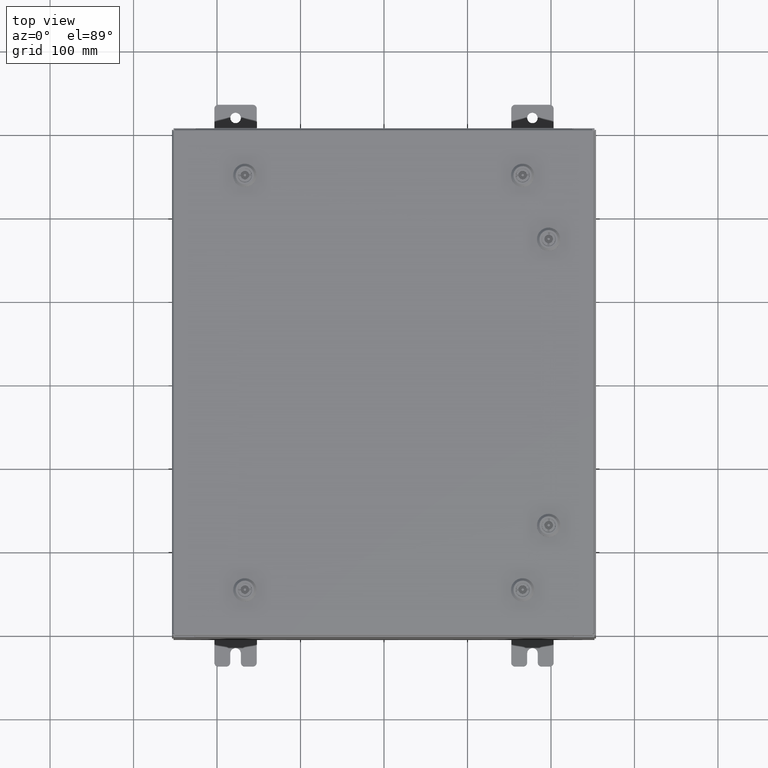
[diagram: clean part render]
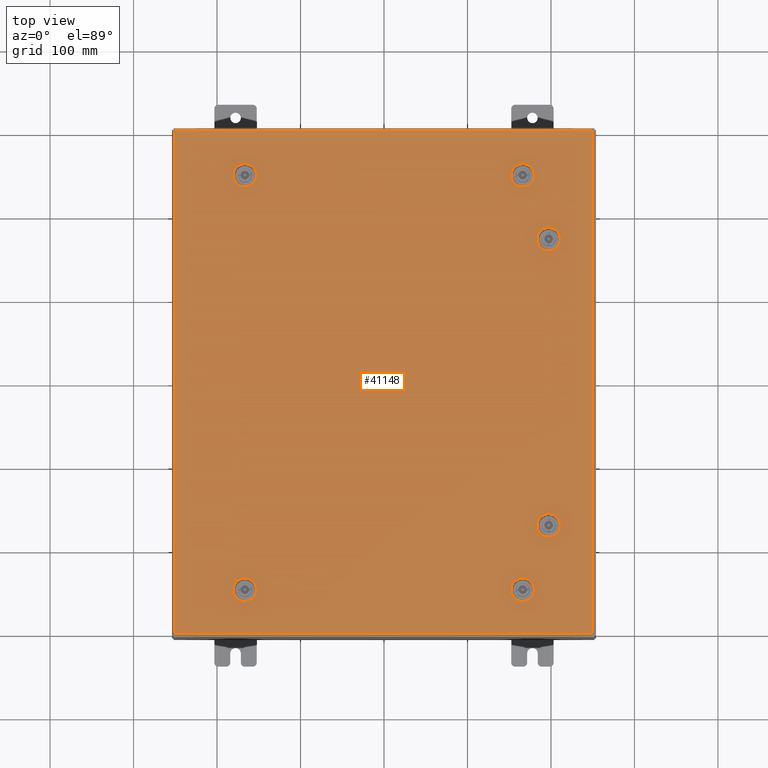
[diagram: same view with one face highlighted and labeled with its STEP entity id]
A machine part, top view. The second image highlights one B-rep face of the part: STEP entity #41148.
In plain terms, the highlighted planar face has unit normal (0, 0, -1).
Its self-contained STEP definition (entity closure, byte-faithful):
#111 = CARTESIAN_POINT ( 'NONE',  ( 6.562499999999985800, 9.787799999999993600, -2.637953810749545800E-014 ) ) ;
#233 = ORIENTED_EDGE ( 'NONE', *, *, #58331, .F. ) ;
#305 = VERTEX_POINT ( 'NONE', #31156 ) ;
#341 = FACE_BOUND ( 'NONE', #40443, .T. ) ;
#412 = CIRCLE ( 'NONE', #37755, 0.4424999999999972800 ) ;
#510 = CARTESIAN_POINT ( 'NONE',  ( 9.849799999999996600, 11.84980000000000000, 8.878505979408856000E-016 ) ) ;
#556 = CARTESIAN_POINT ( 'NONE',  ( -6.363047624732101500, -9.392799999999997600, -4.688151652918229300E-014 ) ) ;
#658 = DIRECTION ( 'NONE',  ( -0.0000000000000000000, -6.982962677686266700E-015, 1.000000000000000000 ) ) ;
#1060 = EDGE_CURVE ( 'NONE', #4224, #2759, #48352, .T. ) ;
#1168 = DIRECTION ( 'NONE',  ( 0.0000000000000000000, 0.0000000000000000000, 1.000000000000000000 ) ) ;
#1275 = DIRECTION ( 'NONE',  ( -1.000000000000000000, 0.0000000000000000000, -0.0000000000000000000 ) ) ;
#1327 = VECTOR ( 'NONE', #10026, 39.37007874015748100 ) ;
#1776 = CARTESIAN_POINT ( 'NONE',  ( 6.761952375267869200, -9.392799999999995800, 0.0000000000000000000 ) ) ;
#2103 = DIRECTION ( 'NONE',  ( 1.000000000000000000, 0.0000000000000000000, 0.0000000000000000000 ) ) ;
#2420 = EDGE_CURVE ( 'NONE', #27146, #17389, #59016, .T. ) ;
#2589 = DIRECTION ( 'NONE',  ( -1.000000000000000000, -1.095739467627835000E-014, 6.982962677686269100E-015 ) ) ;
#2591 = CARTESIAN_POINT ( 'NONE',  ( 8.182800000000003800, -6.550547624732132600, -4.574222958191090100E-014 ) ) ;
#2704 = DIRECTION ( 'NONE',  ( 1.095739467627835000E-014, -1.000000000000000000, -6.982962677686269100E-015 ) ) ;
#2759 = VERTEX_POINT ( 'NONE', #3247 ) ;
#3141 = CARTESIAN_POINT ( 'NONE',  ( 6.363047624732101500, 9.392799999999997600, -2.498676961502394800E-014 ) ) ;
#3247 = CARTESIAN_POINT ( 'NONE',  ( 9.849799999999996600, 11.84980000000000000, 8.878505979408856000E-016 ) ) ;
#3431 = CARTESIAN_POINT ( 'NONE',  ( 7.392800000000014500, -6.949452375267905600, -4.852776656685395200E-014 ) ) ;
#4224 = VERTEX_POINT ( 'NONE', #15415 ) ;
#4475 = ORIENTED_EDGE ( 'NONE', *, *, #51901, .F. ) ;
#4501 = CIRCLE ( 'NONE', #19734, 0.4424999999999983400 ) ;
#4988 = LINE ( 'NONE', #27786, #27956 ) ;
#5026 = DIRECTION ( 'NONE',  ( -1.000000000000000000, 0.0000000000000000000, 6.982962677686260400E-015 ) ) ;
#5047 = VECTOR ( 'NONE', #42336, 39.37007874015748100 ) ;
#5380 = CARTESIAN_POINT ( 'NONE',  ( 8.182800000000000300, 6.949452375267901200, 0.0000000000000000000 ) ) ;
#5567 = CIRCLE ( 'NONE', #14807, 0.4424999999999983400 ) ;
#6147 = DIRECTION ( 'NONE',  ( 6.982962677686266700E-015, -0.0000000000000000000, 1.000000000000000000 ) ) ;
#6258 = VERTEX_POINT ( 'NONE', #10687 ) ;
#6301 = EDGE_CURVE ( 'NONE', #63103, #35065, #36845, .T. ) ;
#6646 = LINE ( 'NONE', #40414, #19624 ) ;
#6902 = CIRCLE ( 'NONE', #40066, 0.4424999999999972800 ) ;
#7379 = ORIENTED_EDGE ( 'NONE', *, *, #29948, .F. ) ;
#7461 = AXIS2_PLACEMENT_3D ( 'NONE', #22369, #56688, #27308 ) ;
#8099 = CARTESIAN_POINT ( 'NONE',  ( -9.849800000000001900, -11.84980000000000000, -2.048885995248197400E-016 ) ) ;
#8692 = CARTESIAN_POINT ( 'NONE',  ( -6.363047624732095300, -10.18279999999998400, -5.239805704455435800E-014 ) ) ;
#8977 = CARTESIAN_POINT ( 'NONE',  ( -6.761952375267868300, -10.18279999999999100, 0.0000000000000000000 ) ) ;
#9099 = EDGE_CURVE ( 'NONE', #35541, #52192, #26746, .T. ) ;
#9555 = CARTESIAN_POINT ( 'NONE',  ( -6.761952375267871900, 9.392799999999995800, 0.0000000000000000000 ) ) ;
#9675 = ORIENTED_EDGE ( 'NONE', *, *, #24078, .F. ) ;
#9805 = AXIS2_PLACEMENT_3D ( 'NONE', #46599, #17234, #51551 ) ;
#10026 = DIRECTION ( 'NONE',  ( 1.000000000000000000, -2.739348669069625000E-015, -6.982962677686286400E-015 ) ) ;
#10184 = ORIENTED_EDGE ( 'NONE', *, *, #59902, .F. ) ;
#10687 = CARTESIAN_POINT ( 'NONE',  ( 7.392800000000010000, -6.550547624732132600, 0.0000000000000000000 ) ) ;
#10893 = PLANE ( 'NONE',  #25452 ) ;
#11063 = DIRECTION ( 'NONE',  ( -1.000000000000000000, 1.643609201441752500E-014, 0.0000000000000000000 ) ) ;
#11423 = CARTESIAN_POINT ( 'NONE',  ( 6.363047624732094400, -10.18279999999998400, -2.741128742953046100E-014 ) ) ;
#11791 = FACE_OUTER_BOUND ( 'NONE', #17791, .T. ) ;
#12160 = LINE ( 'NONE', #58435, #35122 ) ;
#12331 = CARTESIAN_POINT ( 'NONE',  ( 7.004999999999983000, 9.787799999999993600, -2.946949909237161200E-014 ) ) ;
#12690 = VERTEX_POINT ( 'NONE', #35314 ) ;
#13222 = DIRECTION ( 'NONE',  ( 0.0000000000000000000, -1.000000000000000000, 0.0000000000000000000 ) ) ;
#13339 = FACE_BOUND ( 'NONE', #34312, .T. ) ;
#13588 = CIRCLE ( 'NONE', #36173, 0.4424999999999972800 ) ;
#13619 = ORIENTED_EDGE ( 'NONE', *, *, #39049, .T. ) ;
#14032 = ORIENTED_EDGE ( 'NONE', *, *, #17260, .F. ) ;
#14113 = CARTESIAN_POINT ( 'NONE',  ( -6.562499999999986700, 9.787799999999991800, 0.0000000000000000000 ) ) ;
#14175 = CIRCLE ( 'NONE', #61141, 0.4424999999999972800 ) ;
#14807 = AXIS2_PLACEMENT_3D ( 'NONE', #60839, #31431, #2103 ) ;
#14814 = ORIENTED_EDGE ( 'NONE', *, *, #49029, .F. ) ;
#15094 = ORIENTED_EDGE ( 'NONE', *, *, #35519, .F. ) ;
#15187 = CIRCLE ( 'NONE', #43135, 0.4424999999999972800 ) ;
#15415 = CARTESIAN_POINT ( 'NONE',  ( 9.849799999999996600, -11.84980000000000000, -2.048885995248197400E-016 ) ) ;
#15457 = EDGE_CURVE ( 'NONE', #27192, #23685, #412, .T. ) ;
#15619 = CARTESIAN_POINT ( 'NONE',  ( 9.849799999999996600, -11.84980000000000000, -2.048885995248197400E-016 ) ) ;
#15874 = AXIS2_PLACEMENT_3D ( 'NONE', #30458, #1168, #35368 ) ;
#16256 = EDGE_CURVE ( 'NONE', #33314, #57737, #29441, .T. ) ;
#17052 = CARTESIAN_POINT ( 'NONE',  ( 6.562499999999985800, -9.787799999999993600, -2.326024867937287700E-014 ) ) ;
#17234 = DIRECTION ( 'NONE',  ( -0.0000000000000000000, -6.982962677686266700E-015, 1.000000000000000000 ) ) ;
#17260 = EDGE_CURVE ( 'NONE', #57362, #38973, #6646, .T. ) ;
#17326 = DIRECTION ( 'NONE',  ( 0.0000000000000000000, 0.0000000000000000000, 1.000000000000000000 ) ) ;
#17389 = VERTEX_POINT ( 'NONE', #25851 ) ;
#17791 = EDGE_LOOP ( 'NONE', ( #13619, #31609, #46623, #29324 ) ) ;
#18634 = CARTESIAN_POINT ( 'NONE',  ( 6.761952375267869200, 9.392799999999995800, -2.777230659996697100E-014 ) ) ;
#18908 = AXIS2_PLACEMENT_3D ( 'NONE', #111, #34319, #5026 ) ;
#19027 = DIRECTION ( 'NONE',  ( 1.000000000000000000, 0.0000000000000000000, 0.0000000000000000000 ) ) ;
#19624 = VECTOR ( 'NONE', #11063, 39.37007874015748100 ) ;
#19710 = LINE ( 'NONE', #31894, #21272 ) ;
#19734 = AXIS2_PLACEMENT_3D ( 'NONE', #56538, #27154, #61462 ) ;
#19855 = DIRECTION ( 'NONE',  ( -1.000000000000000000, 2.739348669069610000E-015, 1.946424297521510000E-029 ) ) ;
#20713 = CARTESIAN_POINT ( 'NONE',  ( 0.0000000000000000000, 0.0000000000000000000, 0.0000000000000000000 ) ) ;
#20728 = CARTESIAN_POINT ( 'NONE',  ( 6.562499999999985800, -9.787799999999993600, -2.326024867937287700E-014 ) ) ;
#20882 = CARTESIAN_POINT ( 'NONE',  ( 6.562499999999985800, -9.787799999999993600, -2.326024867937287700E-014 ) ) ;
#21272 = VECTOR ( 'NONE', #2589, 39.37007874015748100 ) ;
#21618 = CIRCLE ( 'NONE', #22802, 0.4424999999999972800 ) ;
#21971 = ORIENTED_EDGE ( 'NONE', *, *, #45406, .F. ) ;
#21985 = DIRECTION ( 'NONE',  ( 1.000000000000000000, 0.0000000000000000000, 6.982962677686260400E-015 ) ) ;
#22098 = DIRECTION ( 'NONE',  ( -1.000000000000000000, -2.739348669069625000E-015, -6.982962677686314800E-015 ) ) ;
#22117 = ORIENTED_EDGE ( 'NONE', *, *, #6301, .F. ) ;
#22369 = CARTESIAN_POINT ( 'NONE',  ( -6.562499999999986700, -9.787799999999993600, -4.963978678686834100E-014 ) ) ;
#22436 = CIRCLE ( 'NONE', #7461, 0.4424999999999972800 ) ;
#22544 = CARTESIAN_POINT ( 'NONE',  ( -9.849800000000001900, -11.84980000000000000, -2.048885995248197400E-016 ) ) ;
#22612 = CARTESIAN_POINT ( 'NONE',  ( 7.004999999999983000, -9.787799999999993600, -2.017028769449672600E-014 ) ) ;
#22802 = AXIS2_PLACEMENT_3D ( 'NONE', #17052, #51366, #21985 ) ;
#22845 = ORIENTED_EDGE ( 'NONE', *, *, #16256, .F. ) ;
#23685 = VERTEX_POINT ( 'NONE', #12331 ) ;
#24078 = EDGE_CURVE ( 'NONE', #56993, #45767, #43738, .T. ) ;
#24138 = CARTESIAN_POINT ( 'NONE',  ( 6.562499999999985800, 9.787799999999993600, -2.637953810749545800E-014 ) ) ;
#24211 = EDGE_CURVE ( 'NONE', #12690, #57901, #49127, .T. ) ;
#24288 = EDGE_LOOP ( 'NONE', ( #30222, #51554, #14032, #7379, #38946 ) ) ;
#24389 = VERTEX_POINT ( 'NONE', #35928 ) ;
#24821 = FACE_BOUND ( 'NONE', #24288, .T. ) ;
#25267 = CARTESIAN_POINT ( 'NONE',  ( -6.363047624732101500, 9.392799999999995800, 0.0000000000000000000 ) ) ;
#25452 = AXIS2_PLACEMENT_3D ( 'NONE', #20713, #30574, #1275 ) ;
#25685 = DIRECTION ( 'NONE',  ( 1.000000000000000000, 0.0000000000000000000, 6.982962677686269100E-015 ) ) ;
#25831 = DIRECTION ( 'NONE',  ( 1.000000000000000000, 0.0000000000000000000, 6.982962677686269100E-015 ) ) ;
#25837 = VECTOR ( 'NONE', #19855, 39.37007874015748100 ) ;
#25851 = CARTESIAN_POINT ( 'NONE',  ( 8.182800000000000300, -6.949452375267901200, -4.852776656685392100E-014 ) ) ;
#25986 = CARTESIAN_POINT ( 'NONE',  ( 7.787800000000006100, -6.750000000000015100, -4.713499807438240100E-014 ) ) ;
#26103 = EDGE_LOOP ( 'NONE', ( #36685, #42445, #15094, #4475 ) ) ;
#26746 = LINE ( 'NONE', #25267, #51288 ) ;
#26794 = VERTEX_POINT ( 'NONE', #22544 ) ;
#27146 = VERTEX_POINT ( 'NONE', #3431 ) ;
#27154 = DIRECTION ( 'NONE',  ( -0.0000000000000000000, -6.982962677686266700E-015, 1.000000000000000000 ) ) ;
#27192 = VERTEX_POINT ( 'NONE', #18634 ) ;
#27308 = DIRECTION ( 'NONE',  ( 0.0000000000000000000, 1.000000000000000000, 6.982962677686251700E-015 ) ) ;
#27470 = ORIENTED_EDGE ( 'NONE', *, *, #57208, .F. ) ;
#27610 = EDGE_CURVE ( 'NONE', #60234, #56993, #37467, .T. ) ;
#27786 = CARTESIAN_POINT ( 'NONE',  ( -9.849800000000001900, 11.84980000000000000, -2.048885995248197400E-016 ) ) ;
#27904 = FACE_BOUND ( 'NONE', #26103, .T. ) ;
#27956 = VECTOR ( 'NONE', #13222, 39.37007874015748100 ) ;
#28191 = ORIENTED_EDGE ( 'NONE', *, *, #15457, .F. ) ;
#28460 = EDGE_LOOP ( 'NONE', ( #9675, #60019, #27470, #31540, #35889 ) ) ;
#28547 = EDGE_LOOP ( 'NONE', ( #54704, #51896, #28191, #28742, #22845 ) ) ;
#28742 = ORIENTED_EDGE ( 'NONE', *, *, #57176, .F. ) ;
#28840 = EDGE_CURVE ( 'NONE', #46240, #63103, #15187, .T. ) ;
#29013 = DIRECTION ( 'NONE',  ( -8.218046007208762600E-015, -1.000000000000000000, 0.0000000000000000000 ) ) ;
#29052 = DIRECTION ( 'NONE',  ( -1.000000000000000000, 0.0000000000000000000, 6.982962677686269100E-015 ) ) ;
#29158 = VECTOR ( 'NONE', #62681, 39.37007874015748100 ) ;
#29324 = ORIENTED_EDGE ( 'NONE', *, *, #40158, .T. ) ;
#29367 = AXIS2_PLACEMENT_3D ( 'NONE', #20728, #55045, #25685 ) ;
#29418 = EDGE_CURVE ( 'NONE', #2759, #46322, #38874, .T. ) ;
#29441 = CIRCLE ( 'NONE', #18908, 0.4424999999999972800 ) ;
#29461 = VERTEX_POINT ( 'NONE', #59635 ) ;
#29473 = ORIENTED_EDGE ( 'NONE', *, *, #28840, .F. ) ;
#29889 = VERTEX_POINT ( 'NONE', #33158 ) ;
#29948 = EDGE_CURVE ( 'NONE', #52206, #57362, #13588, .T. ) ;
#29960 = CARTESIAN_POINT ( 'NONE',  ( -6.562499999999986700, -9.787799999999993600, -4.963978678686834100E-014 ) ) ;
#30113 = CIRCLE ( 'NONE', #41492, 0.4424999999999972800 ) ;
#30222 = ORIENTED_EDGE ( 'NONE', *, *, #9099, .F. ) ;
#30458 = CARTESIAN_POINT ( 'NONE',  ( 7.787800000000005200, 6.750000000000015100, 0.0000000000000000000 ) ) ;
#30574 = DIRECTION ( 'NONE',  ( 0.0000000000000000000, 0.0000000000000000000, -1.000000000000000000 ) ) ;
#30883 = DIRECTION ( 'NONE',  ( 0.0000000000000000000, 1.000000000000000000, 6.982962677686251700E-015 ) ) ;
#31156 = CARTESIAN_POINT ( 'NONE',  ( 6.761952375267867400, 10.18279999999999000, 0.0000000000000000000 ) ) ;
#31431 = DIRECTION ( 'NONE',  ( 0.0000000000000000000, 0.0000000000000000000, 1.000000000000000000 ) ) ;
#31540 = ORIENTED_EDGE ( 'NONE', *, *, #42714, .F. ) ;
#31609 = ORIENTED_EDGE ( 'NONE', *, *, #1060, .T. ) ;
#31894 = CARTESIAN_POINT ( 'NONE',  ( 6.363047624732094400, 10.18279999999998400, -2.498676961502389700E-014 ) ) ;
#32116 = CARTESIAN_POINT ( 'NONE',  ( -9.849800000000001900, 11.84980000000000000, -2.048885995248197400E-016 ) ) ;
#32219 = VECTOR ( 'NONE', #54625, 39.37007874015748100 ) ;
#32403 = DIRECTION ( 'NONE',  ( 0.0000000000000000000, 0.0000000000000000000, 1.000000000000000000 ) ) ;
#32919 = VECTOR ( 'NONE', #40785, 39.37007874015748100 ) ;
#33158 = CARTESIAN_POINT ( 'NONE',  ( 7.392800000000008300, 6.550547624732132600, 0.0000000000000000000 ) ) ;
#33314 = VERTEX_POINT ( 'NONE', #54028 ) ;
#33688 = VERTEX_POINT ( 'NONE', #2591 ) ;
#33716 = EDGE_CURVE ( 'NONE', #52192, #52206, #53653, .T. ) ;
#34312 = EDGE_LOOP ( 'NONE', ( #21971, #10184, #39755, #56925 ) ) ;
#34319 = DIRECTION ( 'NONE',  ( 6.982962677686266700E-015, -0.0000000000000000000, 1.000000000000000000 ) ) ;
#34413 = CARTESIAN_POINT ( 'NONE',  ( 6.363047624732101500, 9.392799999999997600, -2.498676961502394800E-014 ) ) ;
#34668 = DIRECTION ( 'NONE',  ( -8.218046007208852600E-015, 1.000000000000000000, -0.0000000000000000000 ) ) ;
#34865 = DIRECTION ( 'NONE',  ( 0.0000000000000000000, 1.000000000000000000, 6.982962677686251700E-015 ) ) ;
#35065 = VERTEX_POINT ( 'NONE', #1776 ) ;
#35122 = VECTOR ( 'NONE', #29013, 39.37007874015748100 ) ;
#35152 = EDGE_CURVE ( 'NONE', #35065, #36134, #57449, .T. ) ;
#35314 = CARTESIAN_POINT ( 'NONE',  ( 8.182800000000003800, 6.550547624732132600, 0.0000000000000000000 ) ) ;
#35368 = DIRECTION ( 'NONE',  ( 1.000000000000000000, 0.0000000000000000000, 0.0000000000000000000 ) ) ;
#35442 = CARTESIAN_POINT ( 'NONE',  ( 6.562499999999985800, 9.787799999999993600, -2.637953810749545800E-014 ) ) ;
#35519 = EDGE_CURVE ( 'NONE', #48768, #29889, #12160, .T. ) ;
#35541 = VERTEX_POINT ( 'NONE', #9555 ) ;
#35613 = LINE ( 'NONE', #36931, #48669 ) ;
#35889 = ORIENTED_EDGE ( 'NONE', *, *, #39761, .F. ) ;
#35928 = CARTESIAN_POINT ( 'NONE',  ( 6.363047624732094400, -10.18279999999998400, -2.741128742953046100E-014 ) ) ;
#36134 = VERTEX_POINT ( 'NONE', #57522 ) ;
#36173 = AXIS2_PLACEMENT_3D ( 'NONE', #14113, #48407, #19027 ) ;
#36685 = ORIENTED_EDGE ( 'NONE', *, *, #24211, .F. ) ;
#36845 = CIRCLE ( 'NONE', #29367, 0.4424999999999972800 ) ;
#36931 = CARTESIAN_POINT ( 'NONE',  ( 7.392800000000014500, -6.949452375267905600, -4.852776656685395200E-014 ) ) ;
#37245 = EDGE_CURVE ( 'NONE', #29889, #12690, #52675, .T. ) ;
#37467 = CIRCLE ( 'NONE', #9805, 0.4424999999999983400 ) ;
#37755 = AXIS2_PLACEMENT_3D ( 'NONE', #24138, #58470, #29052 ) ;
#37786 = DIRECTION ( 'NONE',  ( 8.218046007208852600E-015, 1.000000000000000000, 6.982962677686265900E-015 ) ) ;
#37828 = FACE_BOUND ( 'NONE', #28547, .T. ) ;
#38762 = LINE ( 'NONE', #52404, #51865 ) ;
#38874 = LINE ( 'NONE', #510, #53481 ) ;
#38946 = ORIENTED_EDGE ( 'NONE', *, *, #33716, .F. ) ;
#38973 = VERTEX_POINT ( 'NONE', #56313 ) ;
#39049 = EDGE_CURVE ( 'NONE', #26794, #4224, #44118, .T. ) ;
#39373 = CARTESIAN_POINT ( 'NONE',  ( -6.363047624732101500, -9.392799999999997600, -4.688151652918229300E-014 ) ) ;
#39587 = CARTESIAN_POINT ( 'NONE',  ( 7.392800000000011800, 6.949452375267905600, 0.0000000000000000000 ) ) ;
#39755 = ORIENTED_EDGE ( 'NONE', *, *, #63099, .F. ) ;
#39761 = EDGE_CURVE ( 'NONE', #45767, #29461, #14175, .T. ) ;
#39838 = DIRECTION ( 'NONE',  ( 1.000000000000000000, 2.739348669069610000E-015, -0.0000000000000000000 ) ) ;
#40066 = AXIS2_PLACEMENT_3D ( 'NONE', #61811, #32403, #46042 ) ;
#40158 = EDGE_CURVE ( 'NONE', #46322, #26794, #4988, .T. ) ;
#40398 = DIRECTION ( 'NONE',  ( -1.000000000000000000, 0.0000000000000000000, 6.982962677686269100E-015 ) ) ;
#40414 = CARTESIAN_POINT ( 'NONE',  ( -6.363047624732095300, 10.18279999999998300, 0.0000000000000000000 ) ) ;
#40443 = EDGE_LOOP ( 'NONE', ( #54117, #22117, #29473, #233, #14814 ) ) ;
#40785 = DIRECTION ( 'NONE',  ( 1.000000000000000000, -1.095739467627835000E-014, 6.982962677686171300E-015 ) ) ;
#41148 = ADVANCED_FACE ( 'NONE', ( #13339, #27904, #341, #50926, #37828, #24821, #11791 ), #10893, .F. ) ;
#41492 = AXIS2_PLACEMENT_3D ( 'NONE', #35442, #6147, #40398 ) ;
#42336 = DIRECTION ( 'NONE',  ( 1.000000000000000000, -0.0000000000000000000, -0.0000000000000000000 ) ) ;
#42436 = EDGE_CURVE ( 'NONE', #23685, #305, #30113, .T. ) ;
#42445 = ORIENTED_EDGE ( 'NONE', *, *, #37245, .F. ) ;
#42669 = CARTESIAN_POINT ( 'NONE',  ( -6.761952375267871900, -9.392799999999997600, -4.688151652918228700E-014 ) ) ;
#42714 = EDGE_CURVE ( 'NONE', #29461, #58100, #22436, .T. ) ;
#43135 = AXIS2_PLACEMENT_3D ( 'NONE', #20882, #55190, #25831 ) ;
#43328 = EDGE_CURVE ( 'NONE', #38973, #35541, #5567, .T. ) ;
#43738 = LINE ( 'NONE', #8692, #29158 ) ;
#44118 = LINE ( 'NONE', #8099, #5047 ) ;
#44448 = LINE ( 'NONE', #11423, #32919 ) ;
#44865 = AXIS2_PLACEMENT_3D ( 'NONE', #25986, #60289, #30883 ) ;
#45406 = EDGE_CURVE ( 'NONE', #6258, #27146, #35613, .T. ) ;
#45767 = VERTEX_POINT ( 'NONE', #56370 ) ;
#45898 = VECTOR ( 'NONE', #22098, 39.37007874015748100 ) ;
#46042 = DIRECTION ( 'NONE',  ( 1.000000000000000000, 0.0000000000000000000, 0.0000000000000000000 ) ) ;
#46240 = VERTEX_POINT ( 'NONE', #61103 ) ;
#46322 = VERTEX_POINT ( 'NONE', #32116 ) ;
#46599 = CARTESIAN_POINT ( 'NONE',  ( -6.562499999999986700, -9.787799999999993600, -4.963978678686834100E-014 ) ) ;
#46623 = ORIENTED_EDGE ( 'NONE', *, *, #29418, .T. ) ;
#46696 = CARTESIAN_POINT ( 'NONE',  ( -6.562499999999986700, 9.787799999999991800, 0.0000000000000000000 ) ) ;
#47894 = CARTESIAN_POINT ( 'NONE',  ( 8.182800000000000300, 6.949452375267901200, 0.0000000000000000000 ) ) ;
#48352 = LINE ( 'NONE', #15619, #32219 ) ;
#48407 = DIRECTION ( 'NONE',  ( 0.0000000000000000000, 0.0000000000000000000, 1.000000000000000000 ) ) ;
#48669 = VECTOR ( 'NONE', #2704, 39.37007874015748100 ) ;
#48768 = VERTEX_POINT ( 'NONE', #39587 ) ;
#49029 = EDGE_CURVE ( 'NONE', #36134, #24389, #21618, .T. ) ;
#49127 = LINE ( 'NONE', #5380, #62188 ) ;
#50926 = FACE_BOUND ( 'NONE', #28460, .T. ) ;
#51288 = VECTOR ( 'NONE', #39838, 39.37007874015748100 ) ;
#51366 = DIRECTION ( 'NONE',  ( -6.982962677686266700E-015, -6.982962677686266700E-015, 1.000000000000000000 ) ) ;
#51551 = DIRECTION ( 'NONE',  ( 0.0000000000000000000, 1.000000000000000000, 6.982962677686270700E-015 ) ) ;
#51554 = ORIENTED_EDGE ( 'NONE', *, *, #43328, .F. ) ;
#51650 = DIRECTION ( 'NONE',  ( 1.000000000000000000, 0.0000000000000000000, 0.0000000000000000000 ) ) ;
#51865 = VECTOR ( 'NONE', #37786, 39.37007874015748100 ) ;
#51896 = ORIENTED_EDGE ( 'NONE', *, *, #42436, .F. ) ;
#51901 = EDGE_CURVE ( 'NONE', #57901, #48768, #6902, .T. ) ;
#51917 = LINE ( 'NONE', #39373, #25837 ) ;
#52192 = VERTEX_POINT ( 'NONE', #62559 ) ;
#52206 = VERTEX_POINT ( 'NONE', #57850 ) ;
#52404 = CARTESIAN_POINT ( 'NONE',  ( 8.182800000000000300, -6.949452375267901200, -4.852776656685392100E-014 ) ) ;
#52675 = CIRCLE ( 'NONE', #15874, 0.4424999999999983400 ) ;
#53425 = LINE ( 'NONE', #34413, #1327 ) ;
#53481 = VECTOR ( 'NONE', #54266, 39.37007874015748100 ) ;
#53653 = CIRCLE ( 'NONE', #56456, 0.4424999999999972800 ) ;
#54028 = CARTESIAN_POINT ( 'NONE',  ( 6.363047624732094400, 10.18279999999998400, -2.498676961502389700E-014 ) ) ;
#54117 = ORIENTED_EDGE ( 'NONE', *, *, #35152, .F. ) ;
#54266 = DIRECTION ( 'NONE',  ( -1.000000000000000000, -0.0000000000000000000, -0.0000000000000000000 ) ) ;
#54625 = DIRECTION ( 'NONE',  ( 0.0000000000000000000, 1.000000000000000000, 0.0000000000000000000 ) ) ;
#54704 = ORIENTED_EDGE ( 'NONE', *, *, #61327, .F. ) ;
#54821 = CARTESIAN_POINT ( 'NONE',  ( -6.363047624732095300, 10.18279999999998300, 0.0000000000000000000 ) ) ;
#55045 = DIRECTION ( 'NONE',  ( -6.982962677686266700E-015, -6.982962677686266700E-015, 1.000000000000000000 ) ) ;
#55190 = DIRECTION ( 'NONE',  ( -6.982962677686266700E-015, -6.982962677686266700E-015, 1.000000000000000000 ) ) ;
#56194 = CARTESIAN_POINT ( 'NONE',  ( 6.363047624732101500, -9.392799999999997600, -2.189474691415834200E-014 ) ) ;
#56313 = CARTESIAN_POINT ( 'NONE',  ( -6.761952375267868300, 10.18279999999999000, 0.0000000000000000000 ) ) ;
#56370 = CARTESIAN_POINT ( 'NONE',  ( -6.363047624732095300, -10.18279999999998400, -5.239805704455435800E-014 ) ) ;
#56456 = AXIS2_PLACEMENT_3D ( 'NONE', #46696, #17326, #51650 ) ;
#56538 = CARTESIAN_POINT ( 'NONE',  ( 7.787800000000006100, -6.750000000000015100, -4.713499807438240100E-014 ) ) ;
#56688 = DIRECTION ( 'NONE',  ( -0.0000000000000000000, -6.982962677686266700E-015, 1.000000000000000000 ) ) ;
#56925 = ORIENTED_EDGE ( 'NONE', *, *, #2420, .F. ) ;
#56993 = VERTEX_POINT ( 'NONE', #8977 ) ;
#57176 = EDGE_CURVE ( 'NONE', #57737, #27192, #53425, .T. ) ;
#57208 = EDGE_CURVE ( 'NONE', #58100, #60234, #51917, .T. ) ;
#57362 = VERTEX_POINT ( 'NONE', #54821 ) ;
#57449 = LINE ( 'NONE', #56194, #45898 ) ;
#57522 = CARTESIAN_POINT ( 'NONE',  ( 6.363047624732101500, -9.392799999999997600, -2.189474691415834200E-014 ) ) ;
#57737 = VERTEX_POINT ( 'NONE', #3141 ) ;
#57850 = CARTESIAN_POINT ( 'NONE',  ( -6.119999999999989400, 9.787799999999991800, 0.0000000000000000000 ) ) ;
#57901 = VERTEX_POINT ( 'NONE', #47894 ) ;
#58100 = VERTEX_POINT ( 'NONE', #556 ) ;
#58331 = EDGE_CURVE ( 'NONE', #24389, #46240, #44448, .T. ) ;
#58435 = CARTESIAN_POINT ( 'NONE',  ( 7.392800000000011800, 6.949452375267905600, 0.0000000000000000000 ) ) ;
#58470 = DIRECTION ( 'NONE',  ( 6.982962677686266700E-015, -0.0000000000000000000, 1.000000000000000000 ) ) ;
#59016 = CIRCLE ( 'NONE', #44865, 0.4424999999999972800 ) ;
#59635 = CARTESIAN_POINT ( 'NONE',  ( -6.119999999999989400, -9.787799999999993600, -4.963978678686834100E-014 ) ) ;
#59902 = EDGE_CURVE ( 'NONE', #33688, #6258, #4501, .T. ) ;
#60019 = ORIENTED_EDGE ( 'NONE', *, *, #27610, .F. ) ;
#60234 = VERTEX_POINT ( 'NONE', #42669 ) ;
#60289 = DIRECTION ( 'NONE',  ( -0.0000000000000000000, -6.982962677686266700E-015, 1.000000000000000000 ) ) ;
#60839 = CARTESIAN_POINT ( 'NONE',  ( -6.562499999999986700, 9.787799999999991800, 0.0000000000000000000 ) ) ;
#61103 = CARTESIAN_POINT ( 'NONE',  ( 6.761952375267867400, -10.18279999999999000, -2.462575044458744400E-014 ) ) ;
#61141 = AXIS2_PLACEMENT_3D ( 'NONE', #29960, #658, #34865 ) ;
#61327 = EDGE_CURVE ( 'NONE', #305, #33314, #19710, .T. ) ;
#61462 = DIRECTION ( 'NONE',  ( 0.0000000000000000000, 1.000000000000000000, 6.982962677686252500E-015 ) ) ;
#61811 = CARTESIAN_POINT ( 'NONE',  ( 7.787800000000005200, 6.750000000000015100, 0.0000000000000000000 ) ) ;
#62188 = VECTOR ( 'NONE', #34668, 39.37007874015748100 ) ;
#62559 = CARTESIAN_POINT ( 'NONE',  ( -6.363047624732101500, 9.392799999999995800, 0.0000000000000000000 ) ) ;
#62681 = DIRECTION ( 'NONE',  ( 1.000000000000000000, 1.643609201441752500E-014, 9.732121487607470400E-029 ) ) ;
#63099 = EDGE_CURVE ( 'NONE', #17389, #33688, #38762, .T. ) ;
#63103 = VERTEX_POINT ( 'NONE', #22612 ) ;